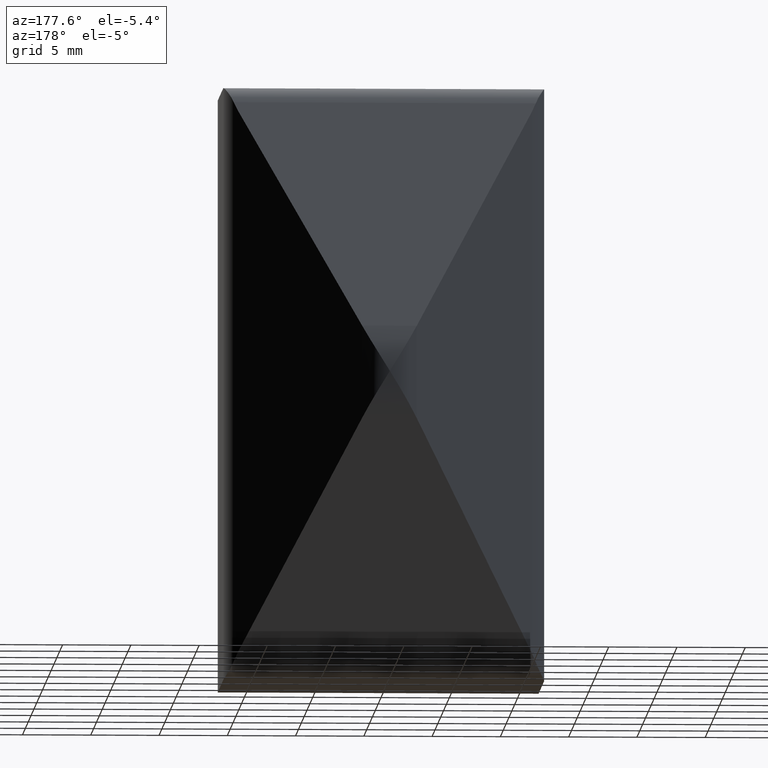
[diagram: clean part render]
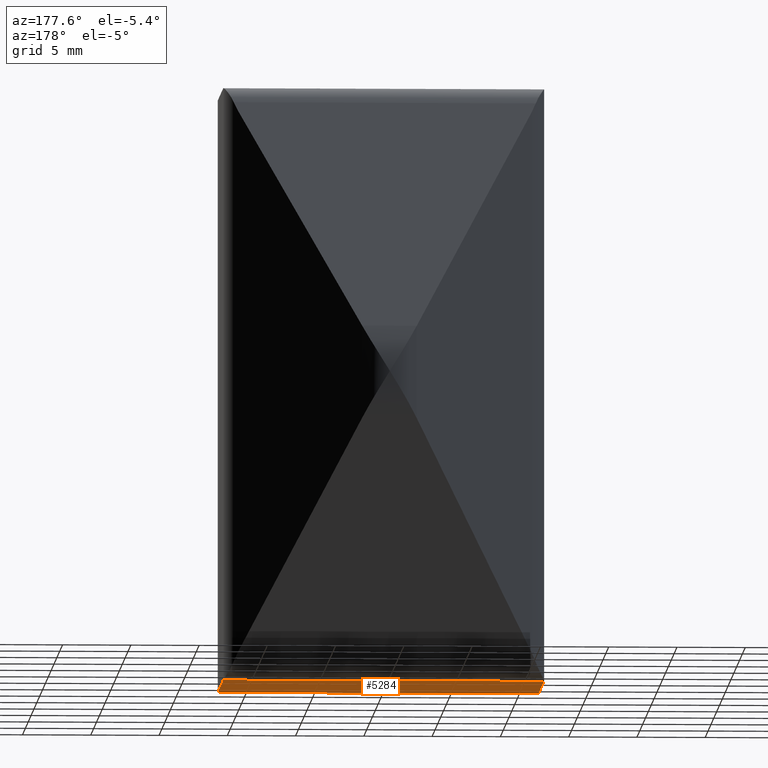
[diagram: same view with one face highlighted and labeled with its STEP entity id]
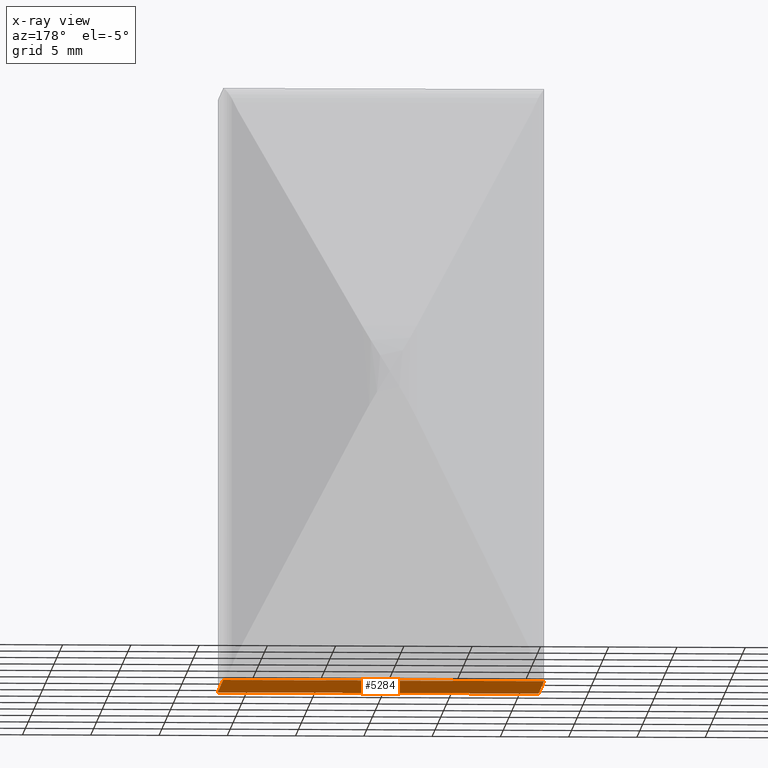
[diagram: x-ray of the same camera — body ghosted, the highlighted face saturated]
A machine part, auxiliary view. The second image highlights one B-rep face of the part: STEP entity #5284.
The next image is the same camera in x-ray: the body ghosted, the highlighted face saturated — about 0% of this face is hidden behind the body in this view.
In plain terms, the highlighted planar face has unit normal (0, 0, 1).
Its self-contained STEP definition (entity closure, byte-faithful):
#1151 = DIRECTION ( 'NONE',  ( 0.000000000000000000, 0.000000000000000000, 1.000000000000000000 ) ) ;
#1178 = EDGE_CURVE ( 'NONE', #7906, #2347, #2613, .T. ) ;
#1529 = CARTESIAN_POINT ( 'NONE',  ( 11.74999999999999645, 9.659937604194901439, -21.75000000000000000 ) ) ;
#2100 = CARTESIAN_POINT ( 'NONE',  ( -11.74999999999998934, 9.659937604194869465, -21.75000000000000000 ) ) ;
#2347 = VERTEX_POINT ( 'NONE', #2100 ) ;
#2530 = DIRECTION ( 'NONE',  ( -1.000000000000000000, -1.369541201499284725E-15, 0.000000000000000000 ) ) ;
#2613 = LINE ( 'NONE', #4980, #15978 ) ;
#2667 = AXIS2_PLACEMENT_3D ( 'NONE', #5105, #1151, #11623 ) ;
#2737 = CARTESIAN_POINT ( 'NONE',  ( -11.74999999999998934, 3.076925082857724936E-15, -21.75000000000000000 ) ) ;
#3219 = EDGE_CURVE ( 'NONE', #3269, #7906, #10082, .T. ) ;
#3269 = VERTEX_POINT ( 'NONE', #8762 ) ;
#3469 = CARTESIAN_POINT ( 'NONE',  ( -11.74999999999998934, 3.076925082857724936E-15, -21.75000000000000000 ) ) ;
#3745 = PLANE ( 'NONE',  #2667 ) ;
#3935 = ORIENTED_EDGE ( 'NONE', *, *, #9911, .F. ) ;
#4305 = ORIENTED_EDGE ( 'NONE', *, *, #11116, .F. ) ;
#4980 = CARTESIAN_POINT ( 'NONE',  ( -31.75000000000000000, 9.659937604194842820, -21.75000000000000000 ) ) ;
#5105 = CARTESIAN_POINT ( 'NONE',  ( -8.749999999999987566, 9.659937604194903216, -21.75000000000000000 ) ) ;
#5284 = ADVANCED_FACE ( 'NONE', ( #11275 ), #3745, .F. ) ;
#5480 = VECTOR ( 'NONE', #14506, 1000.000000000000000 ) ;
#6240 = ORIENTED_EDGE ( 'NONE', *, *, #1178, .F. ) ;
#7584 = ORIENTED_EDGE ( 'NONE', *, *, #3219, .F. ) ;
#7906 = VERTEX_POINT ( 'NONE', #1529 ) ;
#8762 = CARTESIAN_POINT ( 'NONE',  ( 11.75000000000001066, 3.076925082857724936E-15, -21.75000000000000000 ) ) ;
#9145 = VERTEX_POINT ( 'NONE', #12674 ) ;
#9911 = EDGE_CURVE ( 'NONE', #9145, #3269, #16386, .T. ) ;
#10082 = LINE ( 'NONE', #10869, #10909 ) ;
#10869 = CARTESIAN_POINT ( 'NONE',  ( 11.74999999999998757, 9.659937604194903216, -21.75000000000000000 ) ) ;
#10909 = VECTOR ( 'NONE', #16454, 1000.000000000000000 ) ;
#11116 = EDGE_CURVE ( 'NONE', #2347, #9145, #12331, .T. ) ;
#11275 = FACE_OUTER_BOUND ( 'NONE', #16462, .T. ) ;
#11524 = VECTOR ( 'NONE', #16364, 1000.000000000000000 ) ;
#11623 = DIRECTION ( 'NONE',  ( 1.000000000000000000, 0.000000000000000000, -0.000000000000000000 ) ) ;
#12331 = LINE ( 'NONE', #3469, #11524 ) ;
#12674 = CARTESIAN_POINT ( 'NONE',  ( -11.74999999999998934, 3.076925082857724936E-15, -21.75000000000000000 ) ) ;
#14506 = DIRECTION ( 'NONE',  ( 1.000000000000000000, 0.000000000000000000, 0.000000000000000000 ) ) ;
#15978 = VECTOR ( 'NONE', #2530, 1000.000000000000000 ) ;
#16364 = DIRECTION ( 'NONE',  ( -1.795791595199839123E-16, -1.000000000000000000, -0.000000000000000000 ) ) ;
#16386 = LINE ( 'NONE', #2737, #5480 ) ;
#16454 = DIRECTION ( 'NONE',  ( -2.334529073759791008E-15, 1.000000000000000000, -0.000000000000000000 ) ) ;
#16462 = EDGE_LOOP ( 'NONE', ( #6240, #7584, #3935, #4305 ) ) ;